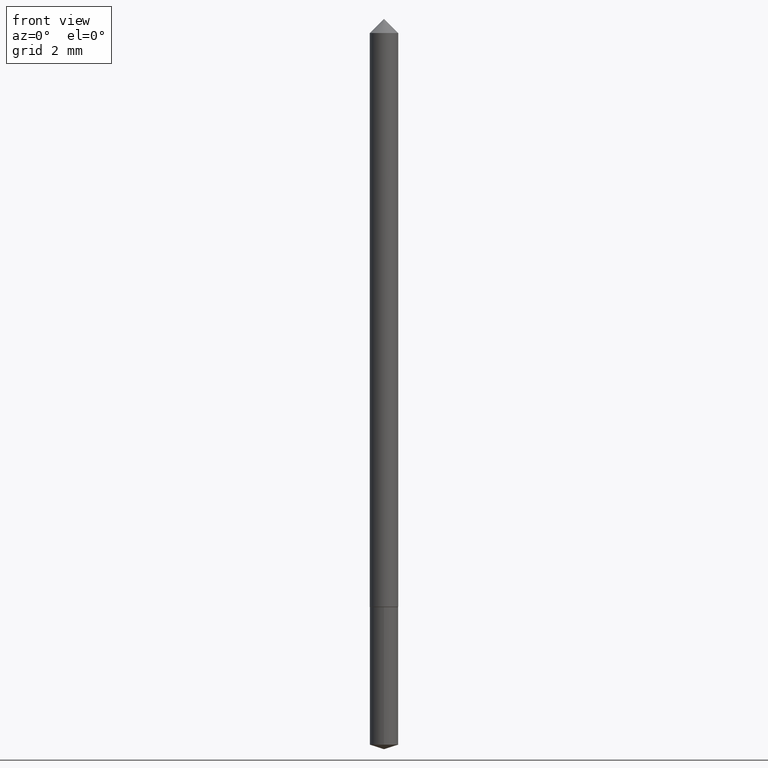
[diagram: clean part render]
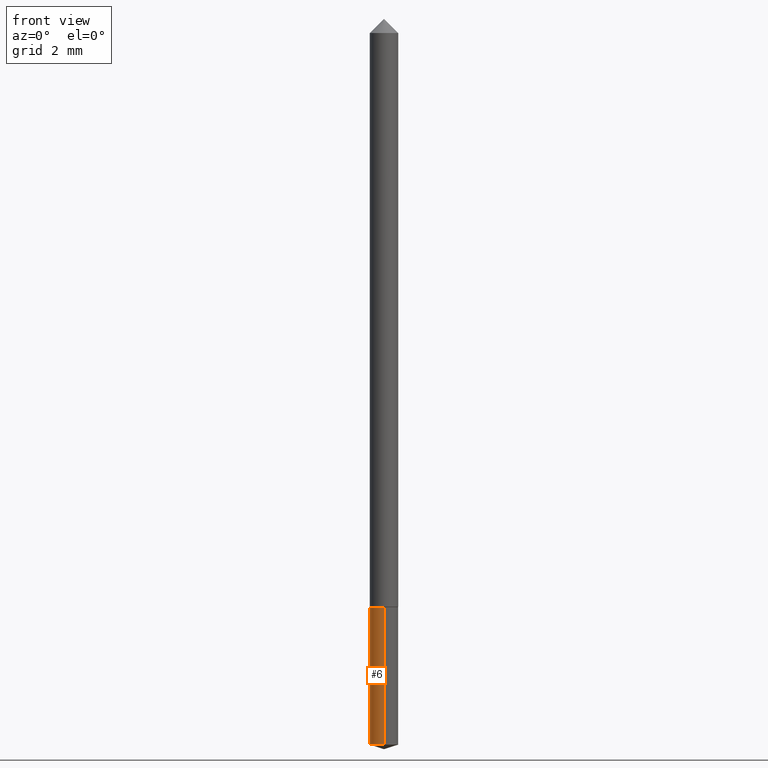
[diagram: same view with one face highlighted and labeled with its STEP entity id]
A machine part, front view. The second image highlights one B-rep face of the part: STEP entity #6.
In plain terms, the highlighted cylindrical surface (edge-blend (fillet) strip) has radius 0.5004 mm, axis along (-0, 0, 1).
Its self-contained STEP definition (entity closure, byte-faithful):
#6 = ADVANCED_FACE ( 'NONE', ( #113 ), #149, .T. ) ;
#13 = DIRECTION ( 'NONE',  ( -6.982962677686265133E-15, -1.000000000000000000, 6.933624349401683764E-15 ) ) ;
#31 = VERTEX_POINT ( 'NONE', #117 ) ;
#51 = ORIENTED_EDGE ( 'NONE', *, *, #324, .T. ) ;
#57 = CIRCLE ( 'NONE', #101, 0.01969999999999999876 ) ;
#61 = CARTESIAN_POINT ( 'NONE',  ( 2.021913608953870993E-29, -2.886756770955512686E-15, -0.8268000000000000904 ) ) ;
#89 = DIRECTION ( 'NONE',  ( -2.445284545285118466E-29, 3.491745210939450966E-15, 1.000000000000000000 ) ) ;
#90 = DIRECTION ( 'NONE',  ( -2.445284545285118466E-29, 3.491745210939450966E-15, 1.000000000000000000 ) ) ;
#91 = AXIS2_PLACEMENT_3D ( 'NONE', #61, #145, #295 ) ;
#95 = CIRCLE ( 'NONE', #91, 0.01969999999999999876 ) ;
#98 = CARTESIAN_POINT ( 'NONE',  ( -1.375643647503991970E-16, -0.01970000000000288187, -0.8267999999999998684 ) ) ;
#101 = AXIS2_PLACEMENT_3D ( 'NONE', #326, #90, #319 ) ;
#107 = EDGE_CURVE ( 'NONE', #143, #359, #95, .T. ) ;
#113 = FACE_OUTER_BOUND ( 'NONE', #166, .T. ) ;
#117 = CARTESIAN_POINT ( 'NONE',  ( 1.399769189447645276E-16, 0.01969999999999644258, -1.017388613859084412 ) ) ;
#131 = EDGE_CURVE ( 'NONE', #31, #281, #57, .T. ) ;
#143 = VERTEX_POINT ( 'NONE', #147 ) ;
#145 = DIRECTION ( 'NONE',  ( -2.445284545285118466E-29, 3.491745210939450966E-15, 1.000000000000000000 ) ) ;
#147 = CARTESIAN_POINT ( 'NONE',  ( 1.399769189447645769E-16, 0.01969999999999711218, -0.8268000000000002014 ) ) ;
#149 = CYLINDRICAL_SURFACE ( 'NONE', #292, 0.01969999999999999876 ) ;
#152 = VECTOR ( 'NONE', #348, 39.37007874015748143 ) ;
#166 = EDGE_LOOP ( 'NONE', ( #226, #253, #51, #196 ) ) ;
#176 = CARTESIAN_POINT ( 'NONE',  ( 2.021913608953870993E-29, -2.886756770955512686E-15, -0.8268000000000000904 ) ) ;
#185 = LINE ( 'NONE', #349, #279 ) ;
#187 = CARTESIAN_POINT ( 'NONE',  ( -1.375643647503991970E-16, -0.01970000000000288187, -0.8267999999999998684 ) ) ;
#196 = ORIENTED_EDGE ( 'NONE', *, *, #107, .F. ) ;
#208 = DIRECTION ( 'NONE',  ( -2.445284545285118466E-29, 3.491745210939450966E-15, 1.000000000000000000 ) ) ;
#226 = ORIENTED_EDGE ( 'NONE', *, *, #342, .F. ) ;
#253 = ORIENTED_EDGE ( 'NONE', *, *, #131, .T. ) ;
#279 = VECTOR ( 'NONE', #208, 39.37007874015748143 ) ;
#281 = VERTEX_POINT ( 'NONE', #301 ) ;
#292 = AXIS2_PLACEMENT_3D ( 'NONE', #176, #89, #13 ) ;
#295 = DIRECTION ( 'NONE',  ( -6.982962677686265133E-15, -1.000000000000000000, 6.933624349401683764E-15 ) ) ;
#301 = CARTESIAN_POINT ( 'NONE',  ( -1.375643647503945132E-16, -0.01970000000000354454, -1.017388613859084190 ) ) ;
#319 = DIRECTION ( 'NONE',  ( -6.982962677686265133E-15, -1.000000000000000000, 6.933624349401683764E-15 ) ) ;
#324 = EDGE_CURVE ( 'NONE', #281, #359, #352, .T. ) ;
#326 = CARTESIAN_POINT ( 'NONE',  ( 2.487957000930802816E-29, -3.552243650657558209E-15, -1.017388613859084190 ) ) ;
#342 = EDGE_CURVE ( 'NONE', #31, #143, #185, .T. ) ;
#348 = DIRECTION ( 'NONE',  ( -2.445284545285118466E-29, 3.491745210939450966E-15, 1.000000000000000000 ) ) ;
#349 = CARTESIAN_POINT ( 'NONE',  ( 1.399769189447599177E-16, 0.01969999999999711218, -0.8268000000000002014 ) ) ;
#352 = LINE ( 'NONE', #98, #152 ) ;
#359 = VERTEX_POINT ( 'NONE', #187 ) ;